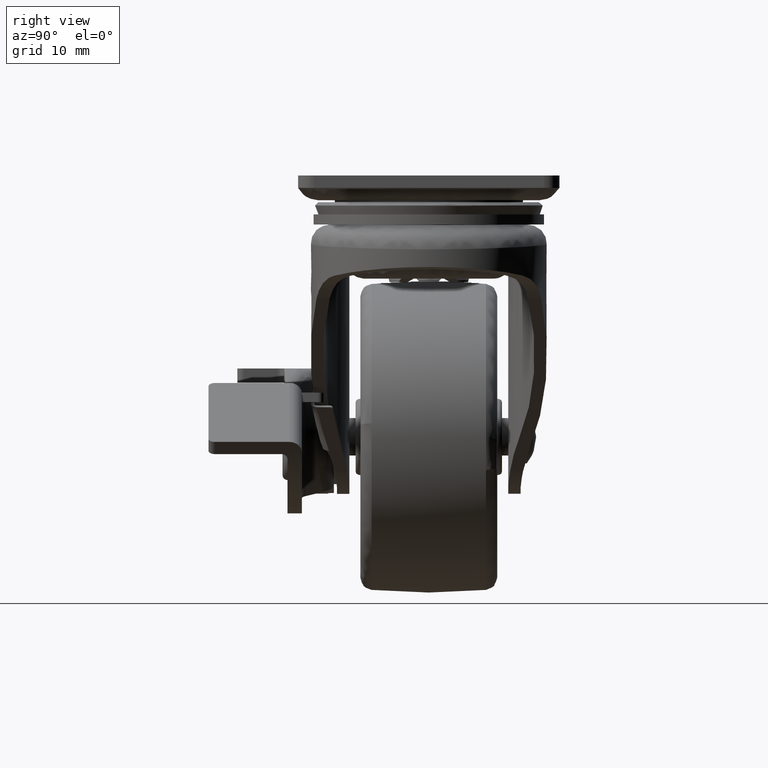
[diagram: clean part render]
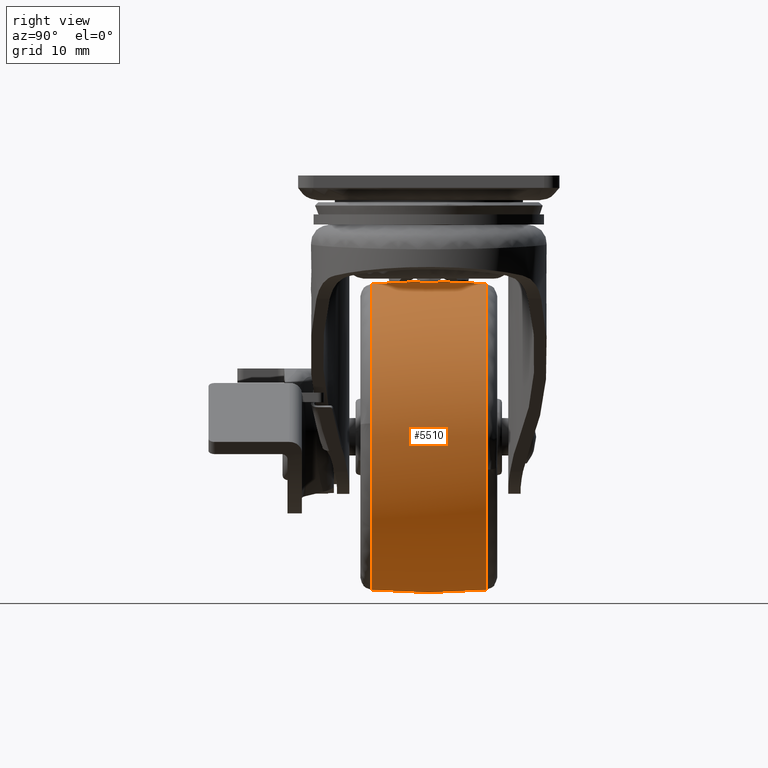
[diagram: same view with one face highlighted and labeled with its STEP entity id]
A machine part, right view. The second image highlights one B-rep face of the part: STEP entity #5510.
In plain terms, the highlighted face is a freeform B-spline surface patch.
Its self-contained STEP definition (entity closure, byte-faithful):
#4347=CARTESIAN_POINT('',(-12.169608113906699,-9.183673719863315,-65.297171101648459));
#4348=VERTEX_POINT('',#4347);
#4361=CARTESIAN_POINT('',(4.482266662376853,-9.183678687866197,-39.841404340570342));
#4362=VERTEX_POINT('',#4361);
#4363=CARTESIAN_POINT('',(-12.169608113906699,-9.183673719863315,-65.297171101648459));
#4364=CARTESIAN_POINT('',(-11.076610447022571,-9.183673792544239,-64.929848468067533));
#4365=CARTESIAN_POINT('',(-9.061036026643340,-9.183673958098060,-64.090313983907365));
#4366=CARTESIAN_POINT('',(-6.436008722352939,-9.183674258485240,-62.560844766000791));
#4367=CARTESIAN_POINT('',(-4.107403667785319,-9.183674599817920,-60.818974061436130));
#4368=CARTESIAN_POINT('',(-2.116612402271487,-9.183674967720535,-58.938403300929899));
#4369=CARTESIAN_POINT('',(-0.272581401197138,-9.183675396177366,-56.745457856933328));
#4370=CARTESIAN_POINT('',(1.386436098426448,-9.183675882812551,-54.252135183856218));
#4371=CARTESIAN_POINT('',(2.953830483930529,-9.183676504595482,-51.063056866908923));
#4372=CARTESIAN_POINT('',(3.955779563752602,-9.183677134586219,-47.828369826412782));
#4373=CARTESIAN_POINT('',(4.594346911752997,-9.183677881501794,-43.990039857620879));
#4374=CARTESIAN_POINT('',(4.628853162883551,-9.183678365505003,-41.500518436543153));
#4375=CARTESIAN_POINT('',(4.482266662376853,-9.183678687866197,-39.841404340570342));
#4376=B_SPLINE_CURVE_WITH_KNOTS('',3,(#4363,#4364,#4365,#4366,#4367,#4368,#4369,#4370,#4371,#4372,#4373,#4374,#4375),.UNSPECIFIED.,.F.,.U.,(4,1,1,1,1,1,1,1,1,1,4),(0.000000053341537,3.459205029254939,6.534100758941861,9.096501831432558,12.171380062667049,14.733789226798971,17.680482803953449,21.139750809734011,25.367710047717129,27.801989782546439,32.798650608311810),.UNSPECIFIED.);
#4377=EDGE_CURVE('',#4348,#4362,#4376,.T.);
#4492=CARTESIAN_POINT('',(-20.000114999999901,-9.183683097211688,-17.423152100794720));
#4493=VERTEX_POINT('',#4492);
#4494=CARTESIAN_POINT('',(4.482266662376853,-9.183678687866197,-39.841404340570342));
#4495=CARTESIAN_POINT('',(4.349036983964419,-9.183678985385294,-38.328740336461927));
#4496=CARTESIAN_POINT('',(3.894948660308795,-9.183679474083537,-35.844072161208302));
#4497=CARTESIAN_POINT('',(2.709994572158079,-9.183680145430850,-32.430768820989478));
#4498=CARTESIAN_POINT('',(1.502704760251862,-9.183680622820276,-30.003597796609029));
#4499=CARTESIAN_POINT('',(-0.024821422506780,-9.183681095880186,-27.598438404771191));
#4500=CARTESIAN_POINT('',(-1.685215852093565,-9.183681505574292,-25.515448212864889));
#4501=CARTESIAN_POINT('',(-3.861899890906043,-9.183681923430438,-23.390959379059609));
#4502=CARTESIAN_POINT('',(-6.383207418779340,-9.183682306280856,-21.444448917427760));
#4503=CARTESIAN_POINT('',(-9.070607191926559,-9.183682607804760,-19.911423398196710));
#4504=CARTESIAN_POINT('',(-12.321111979738900,-9.183682871345015,-18.571516907308151));
#4505=CARTESIAN_POINT('',(-15.824243987176560,-9.183683050852268,-17.658854813006570));
#4506=CARTESIAN_POINT('',(-18.623975470546942,-9.183683097228215,-17.423067898702289));
#4507=CARTESIAN_POINT('',(-20.000114999999901,-9.183683097211688,-17.423152100794720));
#4508=B_SPLINE_CURVE_WITH_KNOTS('',3,(#4494,#4495,#4496,#4497,#4498,#4499,#4500,#4501,#4502,#4503,#4504,#4505,#4506,#4507),.UNSPECIFIED.,.F.,.U.,(4,1,1,1,1,1,1,1,1,1,1,4),(0.000000071500736,4.555524026539072,7.545081305996572,10.819376457368559,12.670077438113321,16.086712795298091,18.791497580765149,21.781108217175031,25.624833280911890,28.044959679469571,32.315793037642841,36.444210224668048),.UNSPECIFIED.);
#4509=EDGE_CURVE('',#4362,#4493,#4508,.T.);
#4511=CARTESIAN_POINT('',(-44.413140206125561,-9.183673469376309,-39.162747550869810));
#4512=VERTEX_POINT('',#4511);
#4529=CARTESIAN_POINT('',(-20.000114999999901,-9.183673469387719,-66.577966787146508));
#4530=VERTEX_POINT('',#4529);
#4531=CARTESIAN_POINT('',(-44.413140206125561,-9.183673469376309,-39.162747550869810));
#4532=CARTESIAN_POINT('',(-44.637960717356442,-9.183673469377739,-41.092726928735523));
#4533=CARTESIAN_POINT('',(-44.629668067078171,-9.183673469379569,-43.755886860068131));
#4534=CARTESIAN_POINT('',(-44.019975295126969,-9.183673469381969,-47.433178212135410));
#4535=CARTESIAN_POINT('',(-43.188906545732593,-9.183673469383773,-50.402129533398423));
#4536=CARTESIAN_POINT('',(-41.738695908380002,-9.183673469385573,-53.667900462166507));
#4537=CARTESIAN_POINT('',(-39.579784071425721,-9.183673469387284,-57.040489081978230));
#4538=CARTESIAN_POINT('',(-36.638621128184681,-9.183673469388602,-60.300016403650389));
#4539=CARTESIAN_POINT('',(-33.206807643487217,-9.183673469389346,-62.867642547468691));
#4540=CARTESIAN_POINT('',(-30.127112684799361,-9.183673469389461,-64.448500311714312));
#4541=CARTESIAN_POINT('',(-27.453260288954130,-9.183673469389365,-65.472221208156640));
#4542=CARTESIAN_POINT('',(-24.209842854244702,-9.183673469388740,-66.324451757526035));
#4543=CARTESIAN_POINT('',(-21.565305290582089,-9.183673469388362,-66.578154563350395));
#4544=CARTESIAN_POINT('',(-20.000114999999901,-9.183673469387719,-66.577966787146508));
#4545=B_SPLINE_CURVE_WITH_KNOTS('',3,(#4531,#4532,#4533,#4534,#4535,#4536,#4537,#4538,#4539,#4540,#4541,#4542,#4543,#4544),.UNSPECIFIED.,.F.,.U.,(4,1,1,1,1,1,1,1,1,1,1,4),(0.000000091495281,5.828930808171087,7.933849326935253,11.172165155048489,15.058146094116831,18.620282014341068,23.153851951017138,28.173255107460751,31.411580674349441,33.516494120574777,36.754792285584372,41.450332024489448),.UNSPECIFIED.);
#4546=EDGE_CURVE('',#4512,#4530,#4545,.T.);
#4548=CARTESIAN_POINT('',(-20.000114999999901,-9.183673469387719,-66.577966787146508));
#4549=CARTESIAN_POINT('',(-18.837902743466820,-9.183673469376391,-66.578024849086120));
#4550=CARTESIAN_POINT('',(-16.181442437568631,-9.183673506309715,-66.389167675810640));
#4551=CARTESIAN_POINT('',(-13.585961084215610,-9.183673626724763,-65.773431025130563));
#4552=CARTESIAN_POINT('',(-12.169608113906699,-9.183673719863315,-65.297171101648459));
#4553=B_SPLINE_CURVE_WITH_KNOTS('',3,(#4548,#4549,#4550,#4551,#4552),.UNSPECIFIED.,.F.,.U.,(4,1,4),(3.008366E-009,3.486633028173015,7.969438667021174),.UNSPECIFIED.);
#4554=EDGE_CURVE('',#4530,#4348,#4553,.T.);
#4589=CARTESIAN_POINT('',(4.004841504337120,9.183677134904061,-47.274175433313737));
#4590=VERTEX_POINT('',#4589);
#4591=CARTESIAN_POINT('',(-20.000114999999901,9.183682850376142,-17.423152078029901));
#4592=VERTEX_POINT('',#4591);
#4593=CARTESIAN_POINT('',(4.004841504337120,9.183677134904061,-47.274175433313737));
#4594=CARTESIAN_POINT('',(4.373263369385097,9.183677456581780,-45.598520417280199));
#4595=CARTESIAN_POINT('',(4.731223571629937,9.183678070755965,-42.398331521365392));
#4596=CARTESIAN_POINT('',(4.360647398707117,9.183678915947363,-37.992196494465723));
#4597=CARTESIAN_POINT('',(3.333267727040928,9.183679694028113,-33.934158070801232));
#4598=CARTESIAN_POINT('',(1.746569618162734,9.183680389850688,-30.303416806006961));
#4599=CARTESIAN_POINT('',(-0.515089106039823,9.183681051699317,-26.848015369214391));
#4600=CARTESIAN_POINT('',(-2.837164029962830,9.183681538380712,-24.305439801754350));
#4601=CARTESIAN_POINT('',(-5.249730338349687,9.183681925521789,-22.281441151044820));
#4602=CARTESIAN_POINT('',(-7.630147871407795,9.183682230062320,-20.688041563576970));
#4603=CARTESIAN_POINT('',(-10.807578873438271,9.183682533768574,-19.096947118361960));
#4604=CARTESIAN_POINT('',(-14.967616255608760,9.183682784891813,-17.777389223003649));
#4605=CARTESIAN_POINT('',(-18.227246681217689,9.183682851303088,-17.422876475344740));
#4606=CARTESIAN_POINT('',(-20.000114999999901,9.183682850376142,-17.423152078029901));
#4607=B_SPLINE_CURVE_WITH_KNOTS('',3,(#4593,#4594,#4595,#4596,#4597,#4598,#4599,#4600,#4601,#4602,#4603,#4604,#4605,#4606),.UNSPECIFIED.,.F.,.U.,(4,1,1,1,1,1,1,1,1,1,1,4),(0.000000099155891,5.146973008084657,9.607747622855271,13.210655919584850,17.671431722990562,21.445909518374108,25.563432472726170,27.965381049928840,30.882035952169709,34.141822041531988,38.602594546519292,43.921135943090427),.UNSPECIFIED.);
#4608=EDGE_CURVE('',#4590,#4592,#4607,.T.);
#4661=CARTESIAN_POINT('',(-44.453431827654107,9.183673959051248,-39.533928212416548));
#4662=VERTEX_POINT('',#4661);
#4713=CARTESIAN_POINT('',(-20.000114999999901,9.183673469387710,-66.577966787146508));
#4714=VERTEX_POINT('',#4713);
#4715=CARTESIAN_POINT('',(-20.000114999999901,9.183673469387710,-66.577966787146508));
#4716=CARTESIAN_POINT('',(-18.439582659009940,9.183673469350431,-66.578163041129400));
#4717=CARTESIAN_POINT('',(-15.925487544577299,9.183673515018546,-66.337660164589337));
#4718=CARTESIAN_POINT('',(-12.600730489937700,9.183673675346741,-65.493320201929137));
#4719=CARTESIAN_POINT('',(-9.840311429072461,9.183673874109090,-64.446573378027978));
#4720=CARTESIAN_POINT('',(-6.725780900183959,9.183674185092242,-62.808836057162829));
#4721=CARTESIAN_POINT('',(-3.276194603079149,9.183674675693606,-60.225170589090567));
#4722=CARTESIAN_POINT('',(-0.333960109082821,9.183675297298866,-56.951597424515413));
#4723=CARTESIAN_POINT('',(1.643275427471014,9.183675899544729,-53.779976110410502));
#4724=CARTESIAN_POINT('',(3.064609602651784,9.183676483083081,-50.706874890964073));
#4725=CARTESIAN_POINT('',(3.716589176429799,9.183676885677640,-48.586681891234932));
#4726=CARTESIAN_POINT('',(4.004841504337120,9.183677134904061,-47.274175433313737));
#4727=B_SPLINE_CURVE_WITH_KNOTS('',3,(#4715,#4716,#4717,#4718,#4719,#4720,#4721,#4722,#4723,#4724,#4725,#4726),.UNSPECIFIED.,.F.,.U.,(4,1,1,1,1,1,1,1,1,4),(0.000000055626195,4.681552610888257,7.542532416959084,10.273458562380920,13.524575826726981,18.076063767085959,23.147773477616699,26.658966643720671,29.259846946867292,33.291194992440190),.UNSPECIFIED.);
#4728=EDGE_CURVE('',#4714,#4590,#4727,.T.);
#4730=CARTESIAN_POINT('',(-44.453431827654107,9.183673959051248,-39.533928212416548));
#4731=CARTESIAN_POINT('',(-44.560830168172473,9.183673925138574,-40.598222013522857));
#4732=CARTESIAN_POINT('',(-44.634426072399947,9.183673860450035,-42.687306641173400));
#4733=CARTESIAN_POINT('',(-44.358559813037893,9.183673773136075,-45.675551815979269));
#4734=CARTESIAN_POINT('',(-43.745592198993222,9.183673693681408,-48.557338337039262));
#4735=CARTESIAN_POINT('',(-42.833061735517660,9.183673624184941,-51.246954676404549));
#4736=CARTESIAN_POINT('',(-41.588890243533477,9.183673561610853,-53.858405039193947));
#4737=CARTESIAN_POINT('',(-39.998057360880530,9.183673505840858,-56.402301179257222));
#4738=CARTESIAN_POINT('',(-38.027985988868103,9.183673459474028,-58.808015857355947));
#4739=CARTESIAN_POINT('',(-35.449957839749629,9.183673420951905,-61.229381169107761));
#4740=CARTESIAN_POINT('',(-32.893077141882173,9.183673401804075,-63.005670613382073));
#4741=CARTESIAN_POINT('',(-30.138726743823700,9.183673395812896,-64.439006387901614));
#4742=CARTESIAN_POINT('',(-27.945026706264589,9.183673399488260,-65.303493437717080));
#4743=CARTESIAN_POINT('',(-24.492733347504409,9.183673417136905,-66.274725756430968));
#4744=CARTESIAN_POINT('',(-21.925638623205199,9.183673443017604,-66.578416129170279));
#4745=CARTESIAN_POINT('',(-20.000114999999901,9.183673469387710,-66.577966787146508));
#4746=B_SPLINE_CURVE_WITH_KNOTS('',3,(#4730,#4731,#4732,#4733,#4734,#4735,#4736,#4737,#4738,#4739,#4740,#4741,#4742,#4743,#4744,#4745),.UNSPECIFIED.,.F.,.U.,(4,1,1,1,1,1,1,1,1,1,1,1,1,4),(0.000000090740066,3.209096876123510,6.257809984169164,8.985578920795540,12.034271908868320,14.762061673613131,17.650299130250382,21.019838655596072,24.068531277268111,28.240398633281789,30.326353143469159,33.375049402563128,35.300543483737222,41.076965331100212),.UNSPECIFIED.);
#4747=EDGE_CURVE('',#4662,#4714,#4746,.T.);
#5440=CARTESIAN_POINT('',(-44.260369802304794,-10.096656876674055,-38.614328795018615));
#5441=CARTESIAN_POINT('',(-45.275460472183731,4.309397E-023,-38.472643115492545));
#5442=CARTESIAN_POINT('',(-44.260369802304794,10.096656876674059,-38.614328795018615));
#5443=CARTESIAN_POINT('',(-44.292967009471695,-10.096656876674055,-38.894754970492627));
#5444=CARTESIAN_POINT('',(-45.309421602406246,2.146123E-023,-38.764802803109511));
#5445=CARTESIAN_POINT('',(-44.292967009471703,10.096656876674059,-38.894754970492627));
#5446=CARTESIAN_POINT('',(-44.489096902091511,-10.096656876674054,-40.582014722590387));
#5447=CARTESIAN_POINT('',(-45.513757906117192,-1.086980E-022,-40.522660397067327));
#5448=CARTESIAN_POINT('',(-44.489096902091504,10.096656876674054,-40.582014722590387));
#5449=CARTESIAN_POINT('',(-44.489096902091504,-10.096656876674054,-42.000559000000003));
#5450=CARTESIAN_POINT('',(-45.513757906117192,-5.088340E-016,-42.000559000000010));
#5451=CARTESIAN_POINT('',(-44.489096902091504,10.096656876674054,-42.000559000000003));
#5452=CARTESIAN_POINT('',(-44.489096902091504,-10.096656876674055,-66.489540902091591));
#5453=CARTESIAN_POINT('',(-45.513757906117199,-7.195999E-016,-67.514201906117293));
#5454=CARTESIAN_POINT('',(-44.489096902091518,10.096656876674054,-66.489540902091591));
#5455=CARTESIAN_POINT('',(-20.000114999999909,-10.096656876674054,-66.489540902091591));
#5456=CARTESIAN_POINT('',(-20.000114999999909,-5.088340E-016,-67.514201906117265));
#5457=CARTESIAN_POINT('',(-20.000114999999909,10.096656876674054,-66.489540902091605));
#5458=CARTESIAN_POINT('',(4.488866902091705,-10.096656876674055,-66.489540902091619));
#5459=CARTESIAN_POINT('',(5.513527906117384,-7.195999E-016,-67.514201906117307));
#5460=CARTESIAN_POINT('',(4.488866902091707,10.096656876674054,-66.489540902091619));
#5461=CARTESIAN_POINT('',(4.488866902091703,-10.096656876674054,-42.000559000000003));
#5462=CARTESIAN_POINT('',(5.513527906117379,-5.088340E-016,-42.000559000000010));
#5463=CARTESIAN_POINT('',(4.488866902091706,10.096656876674054,-42.000559000000003));
#5464=CARTESIAN_POINT('',(4.488866902091719,-10.096656876674055,-17.511577097908393));
#5465=CARTESIAN_POINT('',(5.513527906117397,-7.195999E-016,-16.486916093882716));
#5466=CARTESIAN_POINT('',(4.488866902091719,10.096656876674054,-17.511577097908393));
#5467=CARTESIAN_POINT('',(-20.265590284749361,-10.096656876674054,-17.511577097908390));
#5468=CARTESIAN_POINT('',(-20.276698225981988,-5.065491E-016,-16.486916093882719));
#5469=CARTESIAN_POINT('',(-20.265590284749361,10.096656876674054,-17.511577097908390));
#5470=CARTESIAN_POINT('',(-20.528692087113360,-10.096656876674054,-17.511577097908393));
#5471=CARTESIAN_POINT('',(-20.550808659004822,-5.042847E-016,-16.486916093882719));
#5472=CARTESIAN_POINT('',(-20.528692087113360,10.096656876674054,-17.511577097908393));
#5480=(BOUNDED_SURFACE()B_SPLINE_SURFACE(2,2,((#5440,#5443,#5446,#5449,#5452,#5455,#5458,#5461,#5464,#5467,#5470),(#5441,#5444,#5447,#5450,#5453,#5456,#5459,#5462,#5465,#5468,#5471),(#5442,#5445,#5448,#5451,#5454,#5457,#5460,#5463,#5466,#5469,#5472)),.UNSPECIFIED.,.F.,.F.,.U.)B_SPLINE_SURFACE_WITH_KNOTS((3,3),(3,1,2,2,2,1,3),(0.0,20.245041666771261),(0.0,0.638529074811092,3.952236882502391,45.373593119811908,86.794949357121425,128.216305594430910,128.854197647889010),.UNSPECIFIED.)GEOMETRIC_REPRESENTATION_ITEM()RATIONAL_B_SPLINE_SURFACE(((0.832765981668373,0.836093068362873,0.856686390208360,0.877241431237988,0.620303364766174,0.877241431237988,0.620303364766174,0.877241431237988,0.620303364766174,0.881198297109165,0.885155162980341),(0.828510396788824,0.831820481468182,0.852308567712077,0.872758568762012,0.617133502310284,0.872758568762012,0.617133502310284,0.872758568762012,0.617133502310284,0.876695214332476,0.880631859902941),(0.832765981668373,0.836093068362873,0.856686390208360,0.877241431237988,0.620303364766174,0.877241431237988,0.620303364766174,0.877241431237988,0.620303364766174,0.881198297109165,0.885155162980341)))REPRESENTATION_ITEM('')SURFACE());
#5481=ORIENTED_EDGE('',*,*,#4546,.F.);
#5482=CARTESIAN_POINT('',(-44.413140206125561,-9.183673469376309,-39.162747550869810));
#5483=CARTESIAN_POINT('',(-44.554379950412709,-7.633869560355483,-39.139901722825890));
#5484=CARTESIAN_POINT('',(-44.656115615918452,-6.149886626939441,-39.127583971644420));
#5485=CARTESIAN_POINT('',(-44.727805376138278,-4.595146987256288,-39.124649116210591));
#5486=CARTESIAN_POINT('',(-44.798341281678212,-3.065431055335179,-39.121761497602030));
#5487=CARTESIAN_POINT('',(-44.835789361147988,-1.528369155539524,-39.138581872033768));
#5488=CARTESIAN_POINT('',(-44.838260189235093,0.002851376704274,-39.160202268568902));
#5489=CARTESIAN_POINT('',(-44.843204506387814,3.066941501667697,-39.203466345902029));
#5490=CARTESIAN_POINT('',(-44.717000177007257,6.135196021645468,-39.361680903328242));
#5491=CARTESIAN_POINT('',(-44.453431827654107,9.183673959051248,-39.533928212416548));
#5492=B_SPLINE_CURVE_WITH_KNOTS('',3,(#5482,#5483,#5484,#5485,#5486,#5487,#5488,#5489,#5490,#5491),.UNSPECIFIED.,.F.,.U.,(4,3,3,4),(0.0,4.669182453360963,9.263213894797909,18.456224357406569),.UNSPECIFIED.);
#5493=EDGE_CURVE('',#4512,#4662,#5492,.T.);
#5494=ORIENTED_EDGE('',*,*,#5493,.T.);
#5495=ORIENTED_EDGE('',*,*,#4747,.T.);
#5496=ORIENTED_EDGE('',*,*,#4728,.T.);
#5497=ORIENTED_EDGE('',*,*,#4608,.T.);
#5498=CARTESIAN_POINT('',(-20.000114999999901,-9.183683097211688,-17.423152100794720));
#5499=CARTESIAN_POINT('',(-20.000114999999859,-3.078502933301697,-16.859712199913119));
#5500=CARTESIAN_POINT('',(-20.000114999999951,3.078503505612069,-16.859673990924339));
#5501=CARTESIAN_POINT('',(-20.000114999999901,9.183682850376142,-17.423152078029901));
#5502=B_SPLINE_CURVE_WITH_KNOTS('',3,(#5498,#5499,#5500,#5501),.UNSPECIFIED.,.F.,.U.,(4,4),(5.648531E-010,18.393289165162610),.UNSPECIFIED.);
#5503=EDGE_CURVE('',#4493,#4592,#5502,.T.);
#5504=ORIENTED_EDGE('',*,*,#5503,.F.);
#5505=ORIENTED_EDGE('',*,*,#4509,.F.);
#5506=ORIENTED_EDGE('',*,*,#4377,.F.);
#5507=ORIENTED_EDGE('',*,*,#4554,.F.);
#5508=EDGE_LOOP('',(#5481,#5494,#5495,#5496,#5497,#5504,#5505,#5506,#5507));
#5509=FACE_OUTER_BOUND('',#5508,.T.);
#5510=ADVANCED_FACE('',(#5509),#5480,.T.);